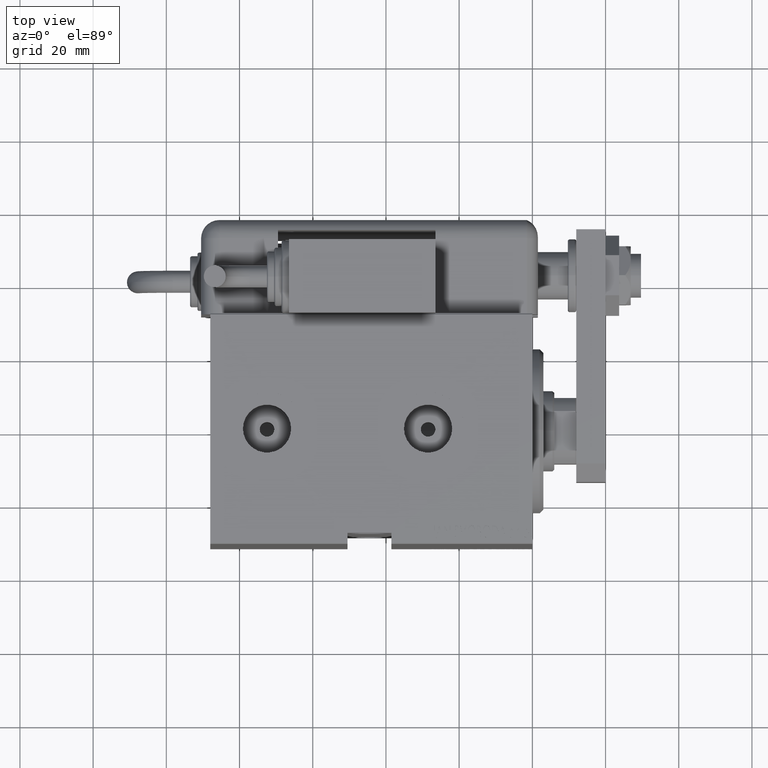
[diagram: clean part render]
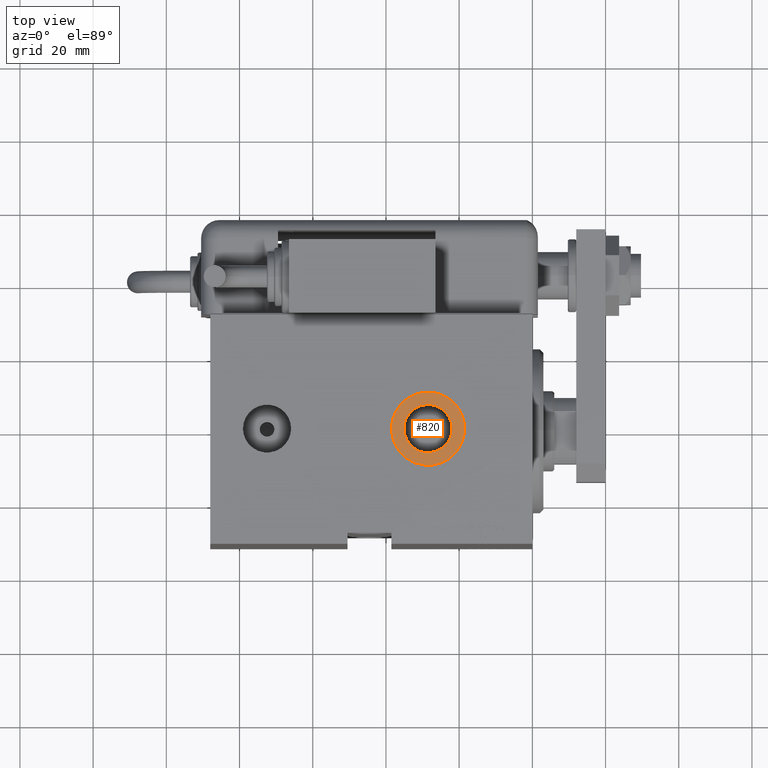
[diagram: same view with one face highlighted and labeled with its STEP entity id]
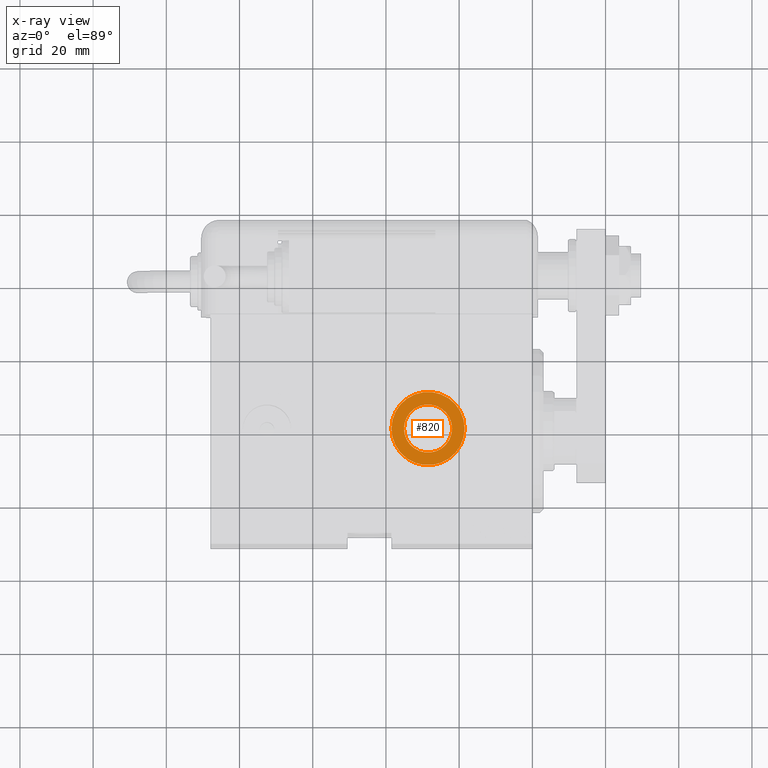
[diagram: x-ray of the same camera — body ghosted, the highlighted face saturated]
A machine part, top view. The second image highlights one B-rep face of the part: STEP entity #820.
The next image is the same camera in x-ray: the body ghosted, the highlighted face saturated — about 0% of this face is hidden behind the body in this view.
In plain terms, the highlighted planar face has unit normal (0, 0, 1).
Its self-contained STEP definition (entity closure, byte-faithful):
#820 = ADVANCED_FACE ( 'NONE', ( #48108, #7196 ), #11064, .T. ) ;
#858 = DIRECTION ( 'NONE',  ( 1.000000000000000000, 0.000000000000000000, 0.000000000000000000 ) ) ;
#1807 = CARTESIAN_POINT ( 'NONE',  ( 38.50000000000000711, -9.361999711620863359E-15, 42.39999999999999147 ) ) ;
#2171 = CARTESIAN_POINT ( 'NONE',  ( 28.50000000000000000, -9.361999711620863359E-15, 42.39999999999999147 ) ) ;
#2438 = CARTESIAN_POINT ( 'NONE',  ( 28.50000000000000000, -9.361999711620863359E-15, 42.39999999999999147 ) ) ;
#3153 = DIRECTION ( 'NONE',  ( 1.000000000000000000, 0.000000000000000000, 0.000000000000000000 ) ) ;
#3490 = CARTESIAN_POINT ( 'NONE',  ( 35.07999999999999829, -9.361999711620863359E-15, 42.39999999999999147 ) ) ;
#3907 = AXIS2_PLACEMENT_3D ( 'NONE', #2438, #6612, #25537 ) ;
#4536 = AXIS2_PLACEMENT_3D ( 'NONE', #2171, #46380, #41929 ) ;
#5079 = AXIS2_PLACEMENT_3D ( 'NONE', #42060, #41486, #858 ) ;
#5115 = CARTESIAN_POINT ( 'NONE',  ( 28.50000000000000000, -9.361999711620863359E-15, 42.39999999999999147 ) ) ;
#6612 = DIRECTION ( 'NONE',  ( 0.000000000000000000, 0.000000000000000000, 1.000000000000000000 ) ) ;
#7196 = FACE_OUTER_BOUND ( 'NONE', #22984, .T. ) ;
#7609 = DIRECTION ( 'NONE',  ( 0.000000000000000000, 0.000000000000000000, 1.000000000000000000 ) ) ;
#10150 = DIRECTION ( 'NONE',  ( 1.000000000000000000, 0.000000000000000000, 0.000000000000000000 ) ) ;
#10571 = AXIS2_PLACEMENT_3D ( 'NONE', #5115, #27318, #10150 ) ;
#10668 = ORIENTED_EDGE ( 'NONE', *, *, #52851, .T. ) ;
#11064 = PLANE ( 'NONE',  #3907 ) ;
#11521 = CIRCLE ( 'NONE', #10571, 10.00000000000000533 ) ;
#12067 = CARTESIAN_POINT ( 'NONE',  ( 28.50000000000000000, -9.361999711620863359E-15, 42.39999999999999147 ) ) ;
#13077 = EDGE_LOOP ( 'NONE', ( #17638, #13646 ) ) ;
#13646 = ORIENTED_EDGE ( 'NONE', *, *, #33598, .F. ) ;
#17638 = ORIENTED_EDGE ( 'NONE', *, *, #43125, .F. ) ;
#20447 = CIRCLE ( 'NONE', #42206, 6.579999999999999183 ) ;
#21106 = VERTEX_POINT ( 'NONE', #56590 ) ;
#22984 = EDGE_LOOP ( 'NONE', ( #10668, #45389 ) ) ;
#25537 = DIRECTION ( 'NONE',  ( 1.000000000000000000, 0.000000000000000000, -0.000000000000000000 ) ) ;
#27318 = DIRECTION ( 'NONE',  ( 0.000000000000000000, 0.000000000000000000, 1.000000000000000000 ) ) ;
#28283 = EDGE_CURVE ( 'NONE', #41854, #53107, #11521, .T. ) ;
#28823 = VERTEX_POINT ( 'NONE', #3490 ) ;
#30601 = CIRCLE ( 'NONE', #5079, 6.579999999999999183 ) ;
#33598 = EDGE_CURVE ( 'NONE', #21106, #28823, #30601, .T. ) ;
#41486 = DIRECTION ( 'NONE',  ( 0.000000000000000000, 0.000000000000000000, 1.000000000000000000 ) ) ;
#41854 = VERTEX_POINT ( 'NONE', #57165 ) ;
#41929 = DIRECTION ( 'NONE',  ( 1.000000000000000000, 0.000000000000000000, 0.000000000000000000 ) ) ;
#42060 = CARTESIAN_POINT ( 'NONE',  ( 28.50000000000000000, -9.361999711620863359E-15, 42.39999999999999147 ) ) ;
#42206 = AXIS2_PLACEMENT_3D ( 'NONE', #12067, #7609, #3153 ) ;
#43125 = EDGE_CURVE ( 'NONE', #28823, #21106, #20447, .T. ) ;
#45389 = ORIENTED_EDGE ( 'NONE', *, *, #28283, .T. ) ;
#46234 = CIRCLE ( 'NONE', #4536, 10.00000000000000533 ) ;
#46380 = DIRECTION ( 'NONE',  ( 0.000000000000000000, 0.000000000000000000, 1.000000000000000000 ) ) ;
#48108 = FACE_BOUND ( 'NONE', #13077, .T. ) ;
#52851 = EDGE_CURVE ( 'NONE', #53107, #41854, #46234, .T. ) ;
#53107 = VERTEX_POINT ( 'NONE', #1807 ) ;
#56590 = CARTESIAN_POINT ( 'NONE',  ( 21.92000000000000171, -8.556182117781905894E-15, 42.39999999999999147 ) ) ;
#57165 = CARTESIAN_POINT ( 'NONE',  ( 18.49999999999999645, -8.137352912473508722E-15, 42.39999999999999147 ) ) ;